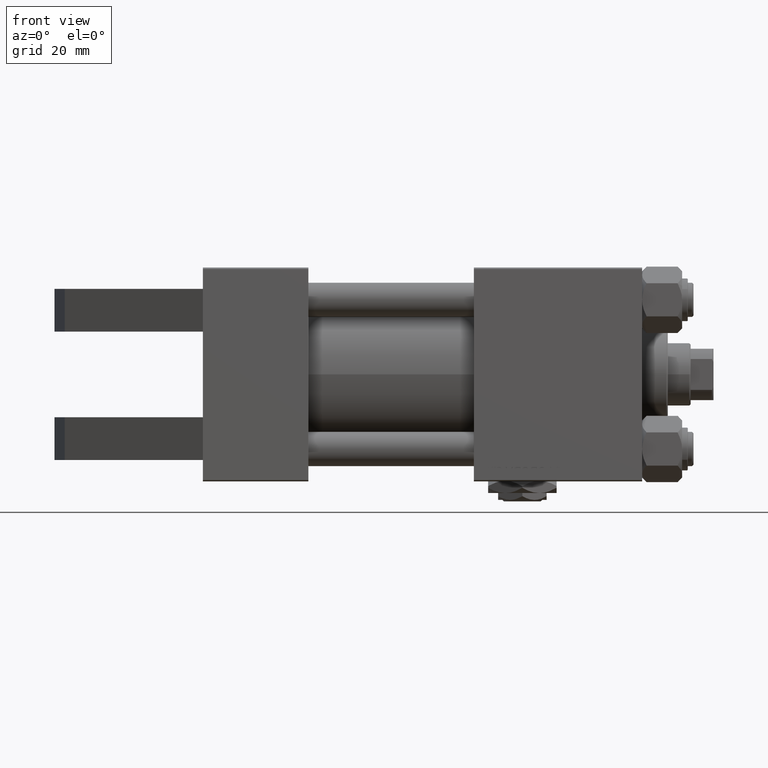
[diagram: clean part render]
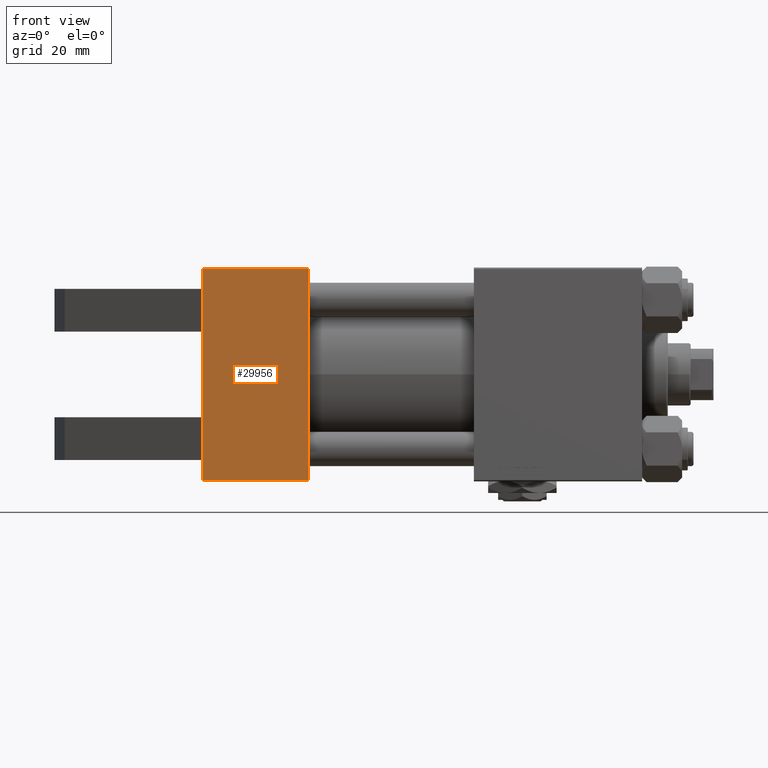
[diagram: same view with one face highlighted and labeled with its STEP entity id]
A machine part, front view. The second image highlights one B-rep face of the part: STEP entity #29956.
In plain terms, the highlighted planar face has unit normal (0, -1, -0).
Its self-contained STEP definition (entity closure, byte-faithful):
#113 = ORIENTED_EDGE ( 'NONE', *, *, #5166, .T. ) ;
#974 = VECTOR ( 'NONE', #14327, 1000.000000000000000 ) ;
#978 = ORIENTED_EDGE ( 'NONE', *, *, #15261, .T. ) ;
#4208 = ORIENTED_EDGE ( 'NONE', *, *, #27312, .T. ) ;
#4534 = LINE ( 'NONE', #16486, #32602 ) ;
#4682 = VERTEX_POINT ( 'NONE', #42053 ) ;
#5148 = VECTOR ( 'NONE', #23957, 1000.000000000000000 ) ;
#5166 = EDGE_CURVE ( 'NONE', #9988, #4682, #4534, .T. ) ;
#5715 = LINE ( 'NONE', #21563, #11421 ) ;
#5936 = CARTESIAN_POINT ( 'NONE',  ( 37.00000000000000000, 37.49999999999999289, -37.50000000000000000 ) ) ;
#8687 = DIRECTION ( 'NONE',  ( -0.000000000000000000, 1.000000000000000000, -0.000000000000000000 ) ) ;
#9953 = VERTEX_POINT ( 'NONE', #48474 ) ;
#9988 = VERTEX_POINT ( 'NONE', #35983 ) ;
#10379 = VECTOR ( 'NONE', #37385, 1000.000000000000000 ) ;
#11421 = VECTOR ( 'NONE', #21815, 1000.000000000000000 ) ;
#12511 = DIRECTION ( 'NONE',  ( 1.000000000000000000, 0.000000000000000000, 0.000000000000000000 ) ) ;
#13541 = EDGE_LOOP ( 'NONE', ( #19601, #45427, #4208, #978, #41397, #113, #34090, #47687 ) ) ;
#14072 = CARTESIAN_POINT ( 'NONE',  ( 0.000000000000000000, 30.00000000000000000, -37.50000000000000711 ) ) ;
#14327 = DIRECTION ( 'NONE',  ( -1.000000000000000000, 0.000000000000000000, 0.000000000000000000 ) ) ;
#14585 = LINE ( 'NONE', #30956, #16322 ) ;
#15261 = EDGE_CURVE ( 'NONE', #17235, #9953, #49447, .T. ) ;
#16322 = VECTOR ( 'NONE', #18744, 1000.000000000000000 ) ;
#16426 = CARTESIAN_POINT ( 'NONE',  ( 37.00000000000000000, 36.99999999999997868, -37.50000000000000000 ) ) ;
#16486 = CARTESIAN_POINT ( 'NONE',  ( 0.000000000000000000, -30.00000000000000000, -37.50000000000000711 ) ) ;
#17235 = VERTEX_POINT ( 'NONE', #30348 ) ;
#18744 = DIRECTION ( 'NONE',  ( 0.000000000000000000, -1.000000000000000000, -9.251858538542972814E-17 ) ) ;
#19601 = ORIENTED_EDGE ( 'NONE', *, *, #30596, .F. ) ;
#19730 = EDGE_CURVE ( 'NONE', #30265, #24978, #43454, .T. ) ;
#19777 = EDGE_CURVE ( 'NONE', #34930, #35236, #23701, .T. ) ;
#20000 = PLANE ( 'NONE',  #21246 ) ;
#21246 = AXIS2_PLACEMENT_3D ( 'NONE', #48094, #28328, #47575 ) ;
#21563 = CARTESIAN_POINT ( 'NONE',  ( 0.000000000000000000, 37.49999999999999289, -37.50000000000000000 ) ) ;
#21815 = DIRECTION ( 'NONE',  ( 0.000000000000000000, -1.000000000000000000, -9.251858538542972814E-17 ) ) ;
#21875 = CARTESIAN_POINT ( 'NONE',  ( 0.000000000000000000, -37.00000000000002132, -37.50000000000000711 ) ) ;
#22446 = CARTESIAN_POINT ( 'NONE',  ( 37.00000000000000000, 36.99999999999997868, -37.50000000000000000 ) ) ;
#23701 = LINE ( 'NONE', #47886, #5148 ) ;
#23957 = DIRECTION ( 'NONE',  ( -0.000000000000000000, -1.000000000000000000, -0.000000000000000000 ) ) ;
#24978 = VERTEX_POINT ( 'NONE', #22446 ) ;
#25469 = CARTESIAN_POINT ( 'NONE',  ( 0.000000000000000000, 15.00000000000000000, -37.50000000000000000 ) ) ;
#27312 = EDGE_CURVE ( 'NONE', #24978, #17235, #41296, .T. ) ;
#28328 = DIRECTION ( 'NONE',  ( 0.000000000000000000, 9.251858538542972814E-17, -1.000000000000000000 ) ) ;
#29682 = CARTESIAN_POINT ( 'NONE',  ( 0.000000000000000000, 37.49999999999999289, -37.50000000000000000 ) ) ;
#29956 = ADVANCED_FACE ( 'NONE', ( #36119 ), #20000, .T. ) ;
#30265 = VERTEX_POINT ( 'NONE', #35990 ) ;
#30348 = CARTESIAN_POINT ( 'NONE',  ( 37.00000000000000000, -37.00000000000002132, -37.50000000000000711 ) ) ;
#30596 = EDGE_CURVE ( 'NONE', #30265, #34930, #33320, .T. ) ;
#30777 = EDGE_CURVE ( 'NONE', #9988, #9953, #14585, .T. ) ;
#30956 = CARTESIAN_POINT ( 'NONE',  ( 0.000000000000000000, 37.49999999999999289, -37.50000000000000000 ) ) ;
#31278 = VECTOR ( 'NONE', #33576, 1000.000000000000000 ) ;
#32602 = VECTOR ( 'NONE', #8687, 1000.000000000000000 ) ;
#33320 = LINE ( 'NONE', #29682, #31278 ) ;
#33576 = DIRECTION ( 'NONE',  ( 0.000000000000000000, -1.000000000000000000, -9.251858538542972814E-17 ) ) ;
#34090 = ORIENTED_EDGE ( 'NONE', *, *, #36359, .F. ) ;
#34930 = VERTEX_POINT ( 'NONE', #14072 ) ;
#35236 = VERTEX_POINT ( 'NONE', #25469 ) ;
#35983 = CARTESIAN_POINT ( 'NONE',  ( 0.000000000000000000, -30.00000000000000000, -37.50000000000000711 ) ) ;
#35990 = CARTESIAN_POINT ( 'NONE',  ( 0.000000000000000000, 36.99999999999997868, -37.50000000000000000 ) ) ;
#36119 = FACE_OUTER_BOUND ( 'NONE', #13541, .T. ) ;
#36359 = EDGE_CURVE ( 'NONE', #35236, #4682, #5715, .T. ) ;
#37385 = DIRECTION ( 'NONE',  ( 0.000000000000000000, -1.000000000000000000, -9.251858538542972814E-17 ) ) ;
#41296 = LINE ( 'NONE', #5936, #10379 ) ;
#41397 = ORIENTED_EDGE ( 'NONE', *, *, #30777, .F. ) ;
#42053 = CARTESIAN_POINT ( 'NONE',  ( 0.000000000000000000, -15.00000000000000000, -37.50000000000000711 ) ) ;
#43454 = LINE ( 'NONE', #16426, #49978 ) ;
#45427 = ORIENTED_EDGE ( 'NONE', *, *, #19730, .T. ) ;
#47575 = DIRECTION ( 'NONE',  ( 0.000000000000000000, 1.000000000000000000, 9.251858538542972814E-17 ) ) ;
#47687 = ORIENTED_EDGE ( 'NONE', *, *, #19777, .F. ) ;
#47886 = CARTESIAN_POINT ( 'NONE',  ( 0.000000000000000000, 30.00000000000000000, -37.50000000000000711 ) ) ;
#48094 = CARTESIAN_POINT ( 'NONE',  ( 37.00000000000000000, 37.49999999999999289, -37.50000000000000000 ) ) ;
#48474 = CARTESIAN_POINT ( 'NONE',  ( 0.000000000000000000, -37.00000000000002132, -37.50000000000000711 ) ) ;
#49447 = LINE ( 'NONE', #21875, #974 ) ;
#49978 = VECTOR ( 'NONE', #12511, 1000.000000000000000 ) ;